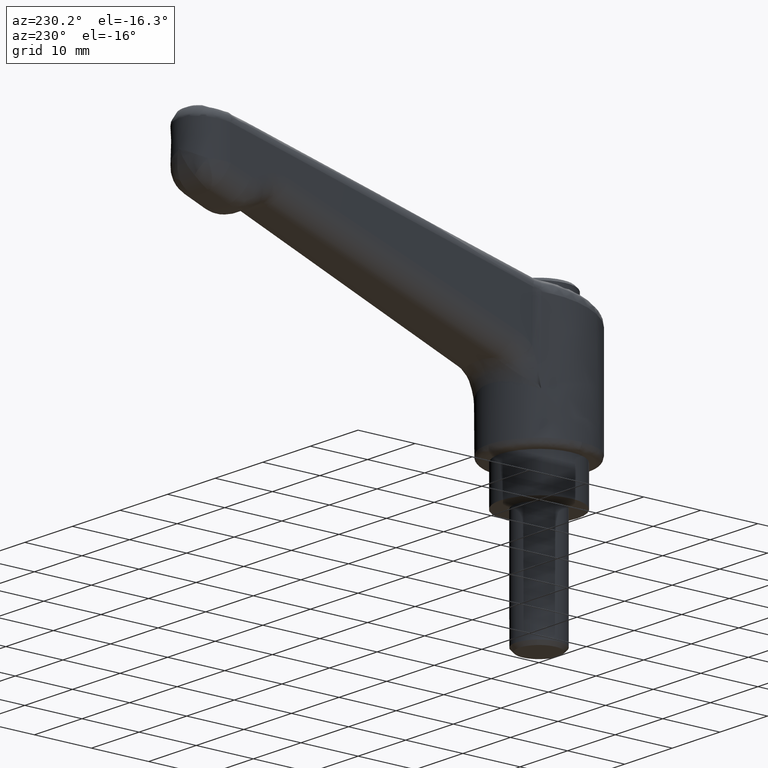
[diagram: clean part render]
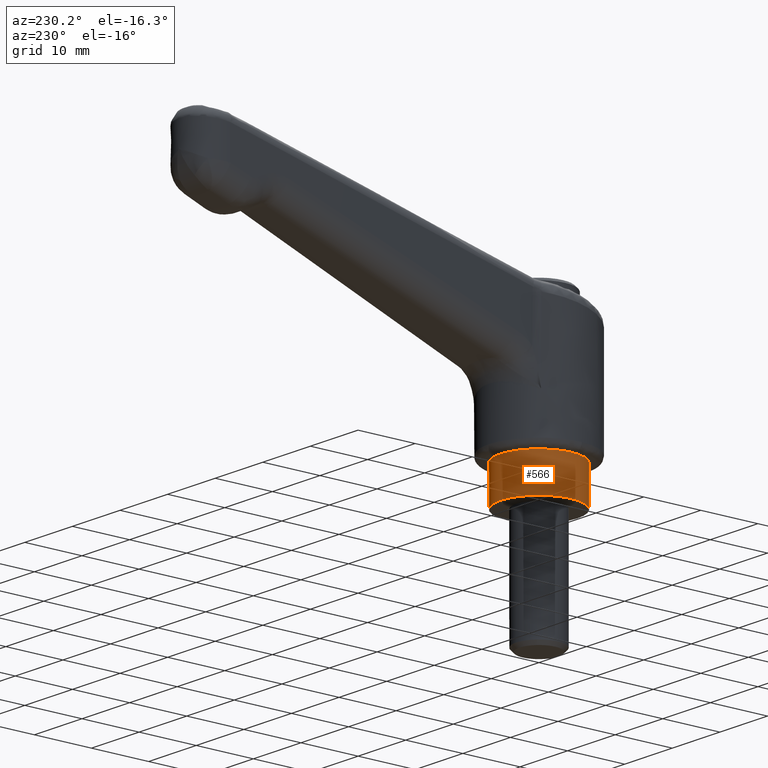
[diagram: same view with one face highlighted and labeled with its STEP entity id]
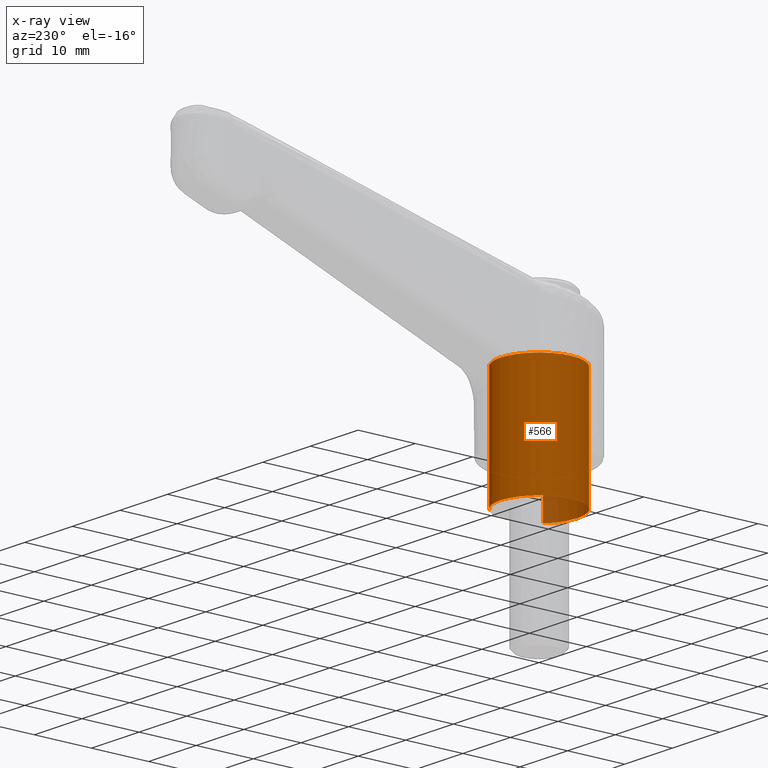
[diagram: x-ray of the same camera — body ghosted, the highlighted face saturated]
A machine part, auxiliary view. The second image highlights one B-rep face of the part: STEP entity #566.
The next image is the same camera in x-ray: the body ghosted, the highlighted face saturated — about 3% of this face is hidden behind the body in this view.
In plain terms, the highlighted face is a freeform B-spline surface patch.
Its self-contained STEP definition (entity closure, byte-faithful):
#408=CARTESIAN_POINT('',(-4.707665948634954,-4.837394062515783,20.500000000000004));
#409=CARTESIAN_POINT('',(-4.846110088419099,-4.702662685615937,20.500000000000000));
#410=CARTESIAN_POINT('',(-4.976622023468336,-4.560233901405705,20.500000000000000));
#411=CARTESIAN_POINT('',(-9.536855924874040,0.416388122062631,20.500000000000007));
#412=CARTESIAN_POINT('',(-4.560233901405705,4.976622023468336,20.500000000000000));
#413=CARTESIAN_POINT('',(0.416388122062631,9.536855924874040,20.500000000000007));
#414=CARTESIAN_POINT('',(4.976622023468336,4.560233901405705,20.500000000000000));
#415=CARTESIAN_POINT('',(9.536855924874040,-0.416388122062631,20.500000000000007));
#416=CARTESIAN_POINT('',(4.560233901405705,-4.976622023468336,20.500000000000000));
#417=CARTESIAN_POINT('',(-4.707665948634954,-4.837394062515783,-0.512500000000003));
#418=CARTESIAN_POINT('',(-4.846110088419099,-4.702662685615937,-0.512500000000003));
#419=CARTESIAN_POINT('',(-4.976622023468336,-4.560233901405705,-0.512500000000003));
#420=CARTESIAN_POINT('',(-9.536855924874040,0.416388122062631,-0.512500000000003));
#421=CARTESIAN_POINT('',(-4.560233901405705,4.976622023468336,-0.512500000000003));
#422=CARTESIAN_POINT('',(0.416388122062631,9.536855924874040,-0.512500000000003));
#423=CARTESIAN_POINT('',(4.976622023468336,4.560233901405705,-0.512500000000003));
#424=CARTESIAN_POINT('',(9.536855924874040,-0.416388122062631,-0.512500000000003));
#425=CARTESIAN_POINT('',(4.560233901405705,-4.976622023468336,-0.512500000000003));
#433=(BOUNDED_SURFACE()B_SPLINE_SURFACE(2,1,((#408,#417),(#409,#418),(#410,#419),(#411,#420),(#412,#421),(#413,#422),(#414,#423),(#415,#424),(#416,#425)),.UNSPECIFIED.,.F.,.F.,.U.)B_SPLINE_SURFACE_WITH_KNOTS((3,2,2,2,3),(2,2),(0.0,0.447350647362943,11.631116831436509,22.814883015510070,33.998649199583632),(0.0,21.012500000000010),.UNSPECIFIED.)GEOMETRIC_REPRESENTATION_ITEM()RATIONAL_B_SPLINE_SURFACE(((0.977505800795127,0.977505800795127),(0.988284271247462,0.988284271247462),(1.0,1.0),(0.707106781186548,0.707106781186548),(1.0,1.0),(0.707106781186548,0.707106781186548),(1.0,1.0),(0.707106781186548,0.707106781186548),(1.0,1.0)))REPRESENTATION_ITEM('')SURFACE());
#434=CARTESIAN_POINT('',(-6.750000000000000,0.0,0.0));
#435=VERTEX_POINT('',#434);
#436=CARTESIAN_POINT('',(-4.707665824975180,-4.837393972379355,4.572615E-013));
#437=VERTEX_POINT('',#436);
#438=CARTESIAN_POINT('',(-6.750000000000000,0.0,0.0));
#439=CARTESIAN_POINT('',(-6.750201137050591,-0.589902584539591,5.576138E-014));
#440=CARTESIAN_POINT('',(-6.620242991719710,-1.572912135858837,1.486817E-013));
#441=CARTESIAN_POINT('',(-6.127756385317830,-2.924013006779627,2.763965E-013));
#442=CARTESIAN_POINT('',(-5.506953695880807,-3.967128315155346,3.749984E-013));
#443=CARTESIAN_POINT('',(-4.969372778233160,-4.582732152723993,4.331893E-013));
#444=CARTESIAN_POINT('',(-4.707665824975180,-4.837393972379355,4.572615E-013));
#445=B_SPLINE_CURVE_WITH_KNOTS('',3,(#438,#439,#440,#441,#442,#443,#444),.UNSPECIFIED.,.F.,.U.,(4,1,1,1,4),(0.000000010771100,1.769646580924548,2.949399808236295,4.297714022970515,5.393207042266304),.UNSPECIFIED.);
#446=EDGE_CURVE('',#435,#437,#445,.T.);
#447=ORIENTED_EDGE('',*,*,#446,.T.);
#448=CARTESIAN_POINT('',(-4.707665825201300,-4.837393972159299,20.0));
#449=VERTEX_POINT('',#448);
#450=CARTESIAN_POINT('',(-4.707665825201300,-4.837393972159299,20.0));
#451=CARTESIAN_POINT('',(-4.707665824975180,-4.837393972379355,4.572615E-013));
#452=QUASI_UNIFORM_CURVE('',1,(#450,#451),.UNSPECIFIED.,.F.,.U.);
#453=EDGE_CURVE('',#449,#437,#452,.T.);
#454=ORIENTED_EDGE('',*,*,#453,.F.);
#455=CARTESIAN_POINT('',(-6.750000000000000,0.0,20.0));
#456=VERTEX_POINT('',#455);
#457=CARTESIAN_POINT('',(-6.750000000000000,0.0,20.0));
#458=CARTESIAN_POINT('',(-6.750056947852670,-0.449434891754084,20.000000000000011));
#459=CARTESIAN_POINT('',(-6.657095035069593,-1.376364139053726,20.0));
#460=CARTESIAN_POINT('',(-6.240374998622339,-2.696297125799423,20.0));
#461=CARTESIAN_POINT('',(-5.576622735730426,-3.877632613425475,19.999999999999989));
#462=CARTESIAN_POINT('',(-5.009647885268450,-4.543564063937544,19.999999999999989));
#463=CARTESIAN_POINT('',(-4.707665825201300,-4.837393972159299,20.0));
#464=B_SPLINE_CURVE_WITH_KNOTS('',3,(#457,#458,#459,#460,#461,#462,#463),.UNSPECIFIED.,.F.,.U.,(4,1,1,1,4),(0.000000010771290,1.348301904829750,2.780867498801479,4.129175187603266,5.393207041950774),.UNSPECIFIED.);
#465=EDGE_CURVE('',#456,#449,#464,.T.);
#466=ORIENTED_EDGE('',*,*,#465,.F.);
#467=CARTESIAN_POINT('',(-0.000000603585625,6.749999999999973,20.0));
#468=VERTEX_POINT('',#467);
#469=CARTESIAN_POINT('',(-0.000000603585625,6.749999999999973,20.0));
#470=CARTESIAN_POINT('',(-0.552245089240394,6.750132890079418,20.000000000000060));
#471=CARTESIAN_POINT('',(-1.352908356019122,6.651175618226108,19.999999999999901));
#472=CARTESIAN_POINT('',(-2.567937814014367,6.274434738483345,20.000000000000082));
#473=CARTESIAN_POINT('',(-3.587777594487129,5.768935741995041,20.000000000000050));
#474=CARTESIAN_POINT('',(-4.686003992539395,4.922670319219029,19.999999999999879));
#475=CARTESIAN_POINT('',(-5.538842603945778,3.934016925592583,20.000000000000639));
#476=CARTESIAN_POINT('',(-6.139797153196066,2.872980955057200,19.999999999998991));
#477=CARTESIAN_POINT('',(-6.612587900143894,1.601359522471674,20.000000000000782));
#478=CARTESIAN_POINT('',(-6.750225083288168,0.635095039093704,19.999999999999631));
#479=CARTESIAN_POINT('',(-6.750000000000000,0.0,20.0));
#480=B_SPLINE_CURVE_WITH_KNOTS('',3,(#469,#470,#471,#472,#473,#474,#475,#476,#477,#478,#479),.UNSPECIFIED.,.F.,.U.,(4,1,1,1,1,1,1,1,4),(0.000000041737021,1.656697272147186,2.402226466331960,3.810436373527907,5.052988838560568,6.543989303707201,7.703696607046512,8.697731753401431,10.602941394214840),.UNSPECIFIED.);
#481=EDGE_CURVE('',#468,#456,#480,.T.);
#482=ORIENTED_EDGE('',*,*,#481,.F.);
#483=CARTESIAN_POINT('',(6.750000000000000,0.0,20.0));
#484=VERTEX_POINT('',#483);
#485=CARTESIAN_POINT('',(6.750000000000000,0.0,20.0));
#486=CARTESIAN_POINT('',(6.750056323362601,0.441789136138231,20.000000000000011));
#487=CARTESIAN_POINT('',(6.671092494815222,1.242504140112021,20.0));
#488=CARTESIAN_POINT('',(6.323773551914324,2.468446817196481,20.000000000000011));
#489=CARTESIAN_POINT('',(5.818250824625091,3.488277363372951,20.0));
#490=CARTESIAN_POINT('',(5.196924196968071,4.336741409579012,20.000000000000060));
#491=CARTESIAN_POINT('',(4.491186346003126,5.078090997520415,19.999999999999879));
#492=CARTESIAN_POINT('',(3.607974469237662,5.750076199964168,20.000000000000011));
#493=CARTESIAN_POINT('',(2.469250347339621,6.323282269281268,19.999999999999979));
#494=CARTESIAN_POINT('',(1.270123404314984,6.670986232024943,20.000000000000060));
#495=CARTESIAN_POINT('',(0.414171630577812,6.750039796443631,19.999999999999929));
#496=CARTESIAN_POINT('',(-0.000000603585625,6.749999999999973,20.0));
#497=B_SPLINE_CURVE_WITH_KNOTS('',3,(#485,#486,#487,#488,#489,#490,#491,#492,#493,#494,#495,#496),.UNSPECIFIED.,.F.,.U.,(4,1,1,1,1,1,1,1,1,4),(0.000000041525704,1.325367237503897,2.402226620315705,3.810436617719105,4.721641683915784,5.549952460949395,6.875334782238659,8.035042421115808,9.360423406359173,10.602942074600790),.UNSPECIFIED.);
#498=EDGE_CURVE('',#484,#468,#497,.T.);
#499=ORIENTED_EDGE('',*,*,#498,.F.);
#500=CARTESIAN_POINT('',(4.560234012321983,-4.976622125720513,20.0));
#501=VERTEX_POINT('',#500);
#502=CARTESIAN_POINT('',(4.560234012321983,-4.976622125720513,20.0));
#503=CARTESIAN_POINT('',(4.882597241538170,-4.681300504584849,20.0));
#504=CARTESIAN_POINT('',(5.450050714526940,-4.049498810764540,20.0));
#505=CARTESIAN_POINT('',(6.040822824734858,-3.072933922426041,19.999999999999989));
#506=CARTESIAN_POINT('',(6.417057172831960,-2.153930688878708,20.000000000000011));
#507=CARTESIAN_POINT('',(6.678946198155928,-1.165808406733887,19.999999999999961));
#508=CARTESIAN_POINT('',(6.750058561953875,-0.437189499274195,20.000000000000011));
#509=CARTESIAN_POINT('',(6.750000000000000,0.0,20.0));
#510=B_SPLINE_CURVE_WITH_KNOTS('',3,(#502,#503,#504,#505,#506,#507,#508,#509),.UNSPECIFIED.,.F.,.U.,(4,1,1,1,1,4),(9.225254E-009,1.311562659107616,2.535695735391033,3.410053931685905,4.284438517071853,5.596001085544154),.UNSPECIFIED.);
#511=EDGE_CURVE('',#501,#484,#510,.T.);
#512=ORIENTED_EDGE('',*,*,#511,.F.);
#513=CARTESIAN_POINT('',(4.560234012446998,-4.976622125605958,-4.779510E-014));
#514=VERTEX_POINT('',#513);
#515=CARTESIAN_POINT('',(4.560234012321983,-4.976622125720513,20.0));
#516=CARTESIAN_POINT('',(4.560234012446998,-4.976622125605958,-4.779510E-014));
#517=QUASI_UNIFORM_CURVE('',1,(#515,#516),.UNSPECIFIED.,.F.,.U.);
#518=EDGE_CURVE('',#501,#514,#517,.T.);
#519=ORIENTED_EDGE('',*,*,#518,.T.);
#520=CARTESIAN_POINT('',(6.750000000000000,0.0,0.0));
#521=VERTEX_POINT('',#520);
#522=CARTESIAN_POINT('',(4.560234012446998,-4.976622125605958,-4.779510E-014));
#523=CARTESIAN_POINT('',(4.839590798456900,-4.720657103933903,-4.533683E-014));
#524=CARTESIAN_POINT('',(5.414583708738594,-4.097049937528932,-3.934776E-014));
#525=CARTESIAN_POINT('',(6.142697582496244,-2.928038491921802,-2.812066E-014));
#526=CARTESIAN_POINT('',(6.637237994153135,-1.515557876687925,-1.455530E-014));
#527=CARTESIAN_POINT('',(6.750073739265535,-0.495478759516017,-4.758540E-015));
#528=CARTESIAN_POINT('',(6.750000000000000,0.0,0.0));
#529=B_SPLINE_CURVE_WITH_KNOTS('',3,(#522,#523,#524,#525,#526,#527,#528),.UNSPECIFIED.,.F.,.U.,(4,1,1,1,4),(9.225247E-009,1.136686063054939,2.535695735314194,4.109563116584504,5.596001085374587),.UNSPECIFIED.);
#530=EDGE_CURVE('',#514,#521,#529,.T.);
#531=ORIENTED_EDGE('',*,*,#530,.T.);
#532=CARTESIAN_POINT('',(-0.000000603585625,6.749999999999973,0.0));
#533=VERTEX_POINT('',#532);
#534=CARTESIAN_POINT('',(6.750000000000000,0.0,0.0));
#535=CARTESIAN_POINT('',(6.750056327727884,0.441789144790774,0.0));
#536=CARTESIAN_POINT('',(6.671092152909324,1.242503895346741,0.0));
#537=CARTESIAN_POINT('',(6.323775557875730,2.468448352724617,0.0));
#538=CARTESIAN_POINT('',(5.818243776630300,3.488271800166951,0.0));
#539=CARTESIAN_POINT('',(5.131546522496693,4.426079511401976,0.0));
#540=CARTESIAN_POINT('',(4.406491101768702,5.151153724855155,0.0));
#541=CARTESIAN_POINT('',(3.553807848702563,5.767440104081360,0.0));
#542=CARTESIAN_POINT('',(2.521644832819487,6.303071214780008,0.0));
#543=CARTESIAN_POINT('',(1.325357676482678,6.665918295346539,0.0));
#544=CARTESIAN_POINT('',(0.414169582697520,6.750033627491894,0.0));
#545=CARTESIAN_POINT('',(-0.000000603585625,6.749999999999973,0.0));
#546=B_SPLINE_CURVE_WITH_KNOTS('',3,(#534,#535,#536,#537,#538,#539,#540,#541,#542,#543,#544,#545),.UNSPECIFIED.,.F.,.U.,(4,1,1,1,1,1,1,1,1,4),(0.000000041525704,1.325367237503897,2.402226620315705,3.810436617719105,4.721641683915784,5.881301313876113,6.875334782238659,7.869370708957991,9.360423406359173,10.602942074600790),.UNSPECIFIED.);
#547=EDGE_CURVE('',#521,#533,#546,.T.);
#548=ORIENTED_EDGE('',*,*,#547,.T.);
#549=CARTESIAN_POINT('',(-0.000000603585625,6.749999999999973,0.0));
#550=CARTESIAN_POINT('',(-0.552246603762573,6.750137737511525,0.0));
#551=CARTESIAN_POINT('',(-1.352907926956293,6.651171756261645,0.0));
#552=CARTESIAN_POINT('',(-2.462259462343959,6.307147419364177,0.0));
#553=CARTESIAN_POINT('',(-3.491949761957459,5.827998769255758,0.0));
#554=CARTESIAN_POINT('',(-4.478845594179150,5.105376280819860,0.0));
#555=CARTESIAN_POINT('',(-5.289060194666690,4.233063621619993,0.0));
#556=CARTESIAN_POINT('',(-5.790272043993892,3.502513875661274,0.0));
#557=CARTESIAN_POINT('',(-6.197661323650190,2.717264650530813,0.0));
#558=CARTESIAN_POINT('',(-6.612608480392449,1.601366875981730,0.0));
#559=CARTESIAN_POINT('',(-6.750221161925173,0.635093167070074,0.0));
#560=CARTESIAN_POINT('',(-6.750000000000000,0.0,0.0));
#561=B_SPLINE_CURVE_WITH_KNOTS('',3,(#549,#550,#551,#552,#553,#554,#555,#556,#557,#558,#559,#560),.UNSPECIFIED.,.F.,.U.,(4,1,1,1,1,1,1,1,1,4),(0.000000041737021,1.656697272147186,2.402226466331960,3.479100342008034,5.052988838560568,6.046989712733842,7.041004226081270,7.703696607046512,8.697731753401431,10.602941394214840),.UNSPECIFIED.);
#562=EDGE_CURVE('',#533,#435,#561,.T.);
#563=ORIENTED_EDGE('',*,*,#562,.T.);
#564=EDGE_LOOP('',(#447,#454,#466,#482,#499,#512,#519,#531,#548,#563));
#565=FACE_OUTER_BOUND('',#564,.T.);
#566=ADVANCED_FACE('',(#565),#433,.T.);